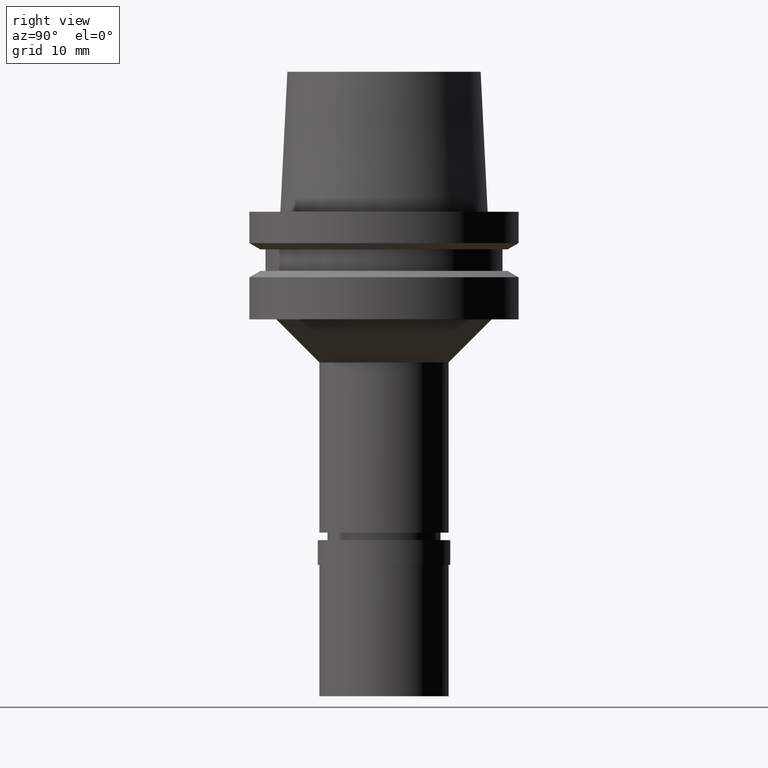
[diagram: clean part render]
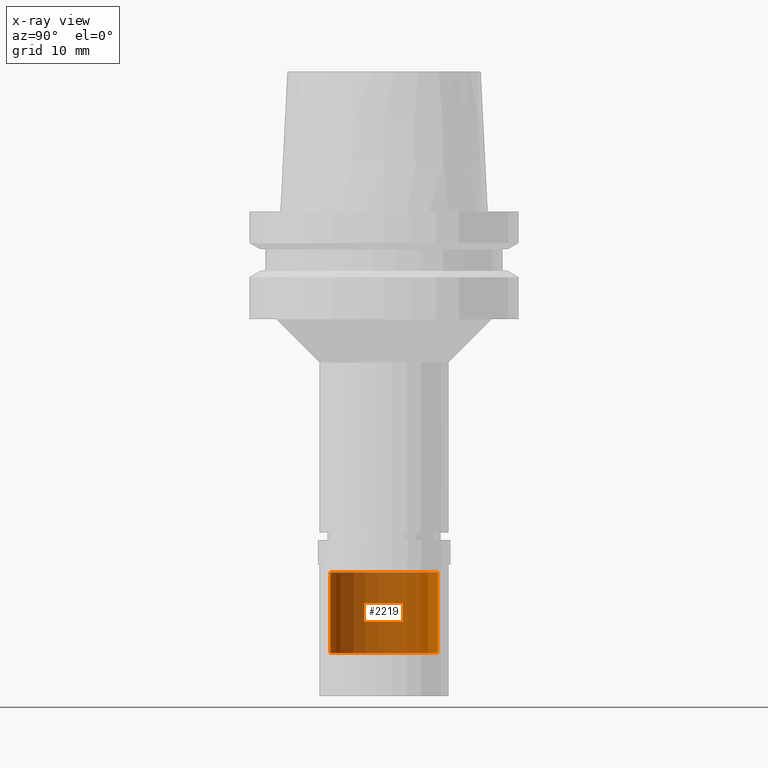
[diagram: x-ray — body ghosted, one internal face saturated and labeled with its STEP entity id]
A machine part, right view, then the same camera in x-ray: the body is ghosted and one INTERNAL B-rep face — a face not visible from any outside direction — is saturated and labeled: STEP entity #2219.
In plain terms, the highlighted cylindrical surface (partial cylindrical patch) has radius 5 mm, axis along (0, 0, 1).
Its self-contained STEP definition (entity closure, byte-faithful):
#32 = DIRECTION ( 'NONE',  ( 0.0000000000000000000, -1.000000000000000000, 0.0000000000000000000 ) ) ;
#96 = AXIS2_PLACEMENT_3D ( 'NONE', #1140, #1080, #32 ) ;
#206 = FACE_OUTER_BOUND ( 'NONE', #678, .T. ) ;
#227 = CIRCLE ( 'NONE', #96, 5.000000000000000000 ) ;
#412 = AXIS2_PLACEMENT_3D ( 'NONE', #1052, #654, #1547 ) ;
#429 = ORIENTED_EDGE ( 'NONE', *, *, #958, .T. ) ;
#501 = DIRECTION ( 'NONE',  ( 0.0000000000000000000, 1.000000000000000000, 0.0000000000000000000 ) ) ;
#654 = DIRECTION ( 'NONE',  ( 0.0000000000000000000, 0.0000000000000000000, 1.000000000000000000 ) ) ;
#678 = EDGE_LOOP ( 'NONE', ( #429, #1441, #767, #1633 ) ) ;
#767 = ORIENTED_EDGE ( 'NONE', *, *, #2304, .T. ) ;
#915 = LINE ( 'NONE', #1757, #1762 ) ;
#952 = DIRECTION ( 'NONE',  ( 0.0000000000000000000, 0.0000000000000000000, -1.000000000000000000 ) ) ;
#958 = EDGE_CURVE ( 'NONE', #1709, #2030, #2678, .T. ) ;
#1052 = CARTESIAN_POINT ( 'NONE',  ( 0.0000000000000000000, 0.0000000000000000000, -43.70000000000000284 ) ) ;
#1080 = DIRECTION ( 'NONE',  ( 0.0000000000000000000, 0.0000000000000000000, -1.000000000000000000 ) ) ;
#1140 = CARTESIAN_POINT ( 'NONE',  ( 0.0000000000000000000, 0.0000000000000000000, -33.50000000000000000 ) ) ;
#1264 = CYLINDRICAL_SURFACE ( 'NONE', #412, 5.000000000000000000 ) ;
#1319 = CARTESIAN_POINT ( 'NONE',  ( 0.0000000000000000000, 5.000000000000000000, -33.50000000000000000 ) ) ;
#1334 = DIRECTION ( 'NONE',  ( 0.0000000000000000000, 0.0000000000000000000, -1.000000000000000000 ) ) ;
#1385 = CARTESIAN_POINT ( 'NONE',  ( 0.0000000000000000000, -5.000000000000000000, -33.50000000000000000 ) ) ;
#1401 = CARTESIAN_POINT ( 'NONE',  ( 0.0000000000000000000, 5.000000000000000000, -41.00000000000000000 ) ) ;
#1433 = VERTEX_POINT ( 'NONE', #2312 ) ;
#1441 = ORIENTED_EDGE ( 'NONE', *, *, #1689, .F. ) ;
#1547 = DIRECTION ( 'NONE',  ( 0.0000000000000000000, 1.000000000000000000, 0.0000000000000000000 ) ) ;
#1560 = CARTESIAN_POINT ( 'NONE',  ( 0.0000000000000000000, 0.0000000000000000000, -41.00000000000000000 ) ) ;
#1633 = ORIENTED_EDGE ( 'NONE', *, *, #1980, .T. ) ;
#1689 = EDGE_CURVE ( 'NONE', #1433, #2030, #1993, .T. ) ;
#1709 = VERTEX_POINT ( 'NONE', #1401 ) ;
#1757 = CARTESIAN_POINT ( 'NONE',  ( 0.0000000000000000000, 5.000000000000000000, -33.50000000000000000 ) ) ;
#1762 = VECTOR ( 'NONE', #1334, 1000.000000000000000 ) ;
#1980 = EDGE_CURVE ( 'NONE', #2073, #1709, #915, .T. ) ;
#1993 = LINE ( 'NONE', #1385, #2292 ) ;
#2030 = VERTEX_POINT ( 'NONE', #2181 ) ;
#2073 = VERTEX_POINT ( 'NONE', #1319 ) ;
#2181 = CARTESIAN_POINT ( 'NONE',  ( 0.0000000000000000000, -5.000000000000000000, -41.00000000000000000 ) ) ;
#2219 = ADVANCED_FACE ( 'NONE', ( #206 ), #1264, .T. ) ;
#2292 = VECTOR ( 'NONE', #952, 1000.000000000000000 ) ;
#2304 = EDGE_CURVE ( 'NONE', #1433, #2073, #227, .T. ) ;
#2312 = CARTESIAN_POINT ( 'NONE',  ( 0.0000000000000000000, -5.000000000000000000, -33.50000000000000000 ) ) ;
#2354 = DIRECTION ( 'NONE',  ( 0.0000000000000000000, 0.0000000000000000000, 1.000000000000000000 ) ) ;
#2632 = AXIS2_PLACEMENT_3D ( 'NONE', #1560, #2354, #501 ) ;
#2678 = CIRCLE ( 'NONE', #2632, 5.000000000000000000 ) ;